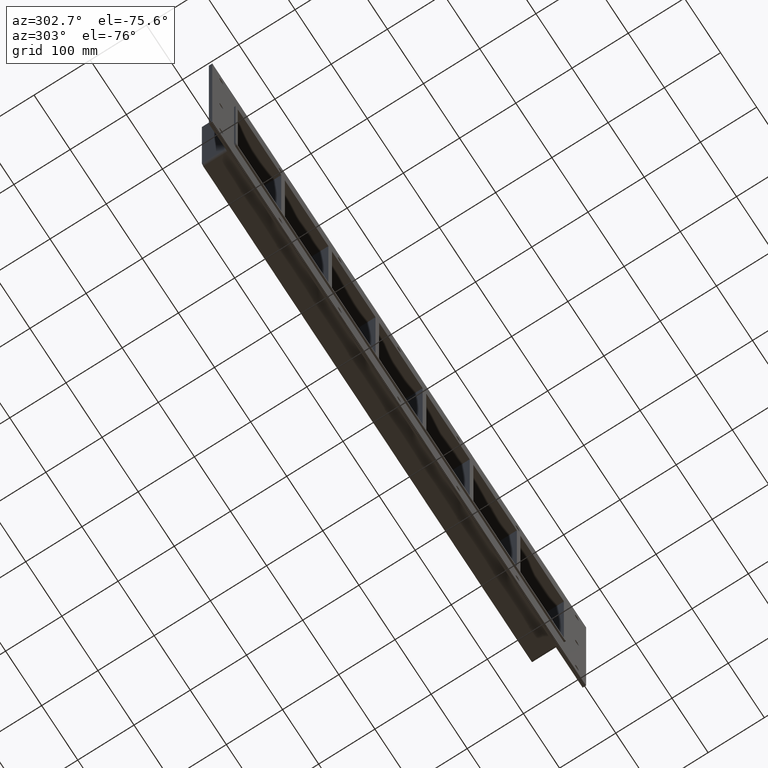
[diagram: clean part render]
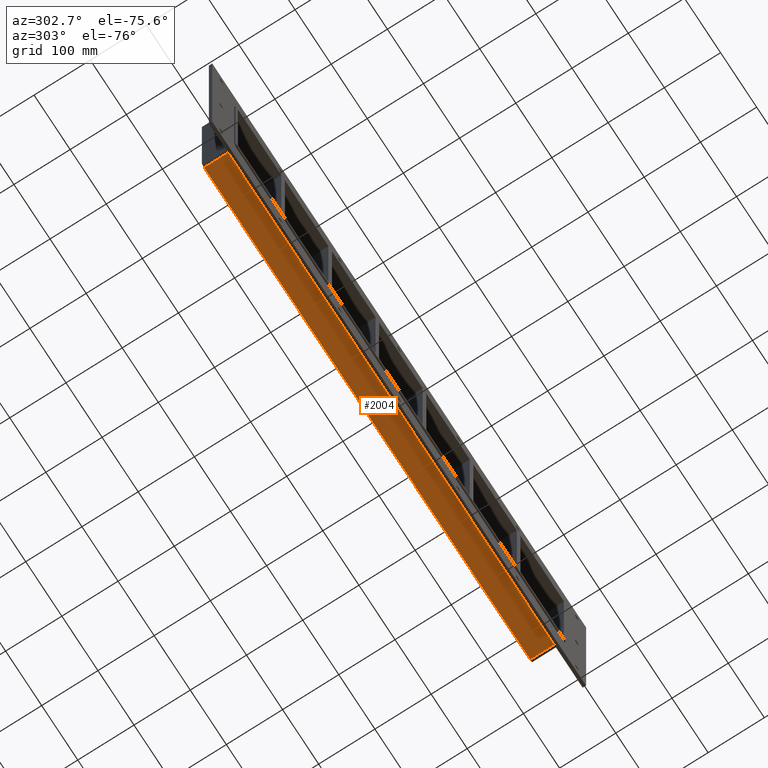
[diagram: same view with one face highlighted and labeled with its STEP entity id]
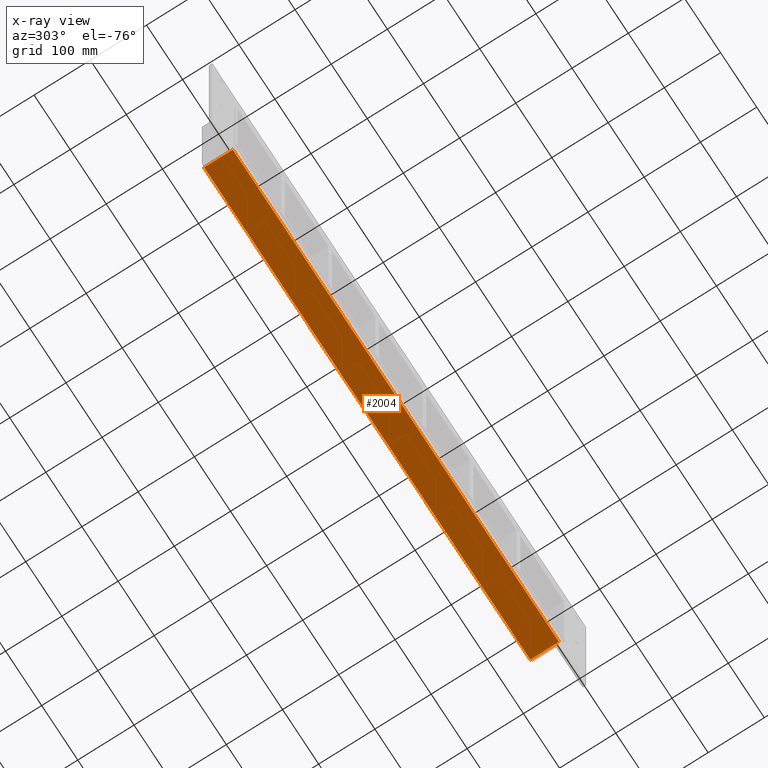
[diagram: x-ray of the same camera — body ghosted, the highlighted face saturated]
A machine part, auxiliary view. The second image highlights one B-rep face of the part: STEP entity #2004.
The next image is the same camera in x-ray: the body ghosted, the highlighted face saturated — about 0% of this face is hidden behind the body in this view.
In plain terms, the highlighted planar face has unit normal (0, 0, -1).
Its self-contained STEP definition (entity closure, byte-faithful):
#1427=CARTESIAN_POINT('',(-451.75000000000011,6.000000000000001,-115.0));
#1428=VERTEX_POINT('',#1427);
#1438=CARTESIAN_POINT('',(451.75000000000011,6.000000000000001,-115.0));
#1439=VERTEX_POINT('',#1438);
#1440=CARTESIAN_POINT('',(451.75000000000011,6.000000000000001,-115.0));
#1441=DIRECTION('',(-1.0,0.0,0.0));
#1442=VECTOR('',#1441,903.50000000000023);
#1443=LINE('',#1440,#1442);
#1444=EDGE_CURVE('',#1439,#1428,#1443,.T.);
#1913=CARTESIAN_POINT('',(451.75000000000011,57.0,-115.0));
#1914=VERTEX_POINT('',#1913);
#1915=CARTESIAN_POINT('',(451.75000000000011,6.000000000000001,-115.0));
#1916=DIRECTION('',(0.0,1.0,0.0));
#1917=VECTOR('',#1916,51.0);
#1918=LINE('',#1915,#1917);
#1919=EDGE_CURVE('',#1439,#1914,#1918,.T.);
#1981=CARTESIAN_POINT('',(457.75000000000006,0.0,-115.0));
#1982=DIRECTION('',(0.0,0.0,-1.0));
#1983=DIRECTION('',(-1.0,0.0,0.0));
#1984=AXIS2_PLACEMENT_3D('',#1981,#1982,#1983);
#1985=PLANE('',#1984);
#1986=ORIENTED_EDGE('',*,*,#1444,.T.);
#1987=CARTESIAN_POINT('',(-451.75000000000011,57.0,-115.0));
#1988=VERTEX_POINT('',#1987);
#1989=CARTESIAN_POINT('',(-451.75000000000011,57.0,-115.0));
#1990=DIRECTION('',(0.0,-1.0,0.0));
#1991=VECTOR('',#1990,51.0);
#1992=LINE('',#1989,#1991);
#1993=EDGE_CURVE('',#1988,#1428,#1992,.T.);
#1994=ORIENTED_EDGE('',*,*,#1993,.F.);
#1995=CARTESIAN_POINT('',(451.75000000000011,57.0,-115.0));
#1996=DIRECTION('',(-1.0,0.0,0.0));
#1997=VECTOR('',#1996,903.50000000000023);
#1998=LINE('',#1995,#1997);
#1999=EDGE_CURVE('',#1914,#1988,#1998,.T.);
#2000=ORIENTED_EDGE('',*,*,#1999,.F.);
#2001=ORIENTED_EDGE('',*,*,#1919,.F.);
#2002=EDGE_LOOP('',(#1986,#1994,#2000,#2001));
#2003=FACE_OUTER_BOUND('',#2002,.T.);
#2004=ADVANCED_FACE('',(#2003),#1985,.T.);